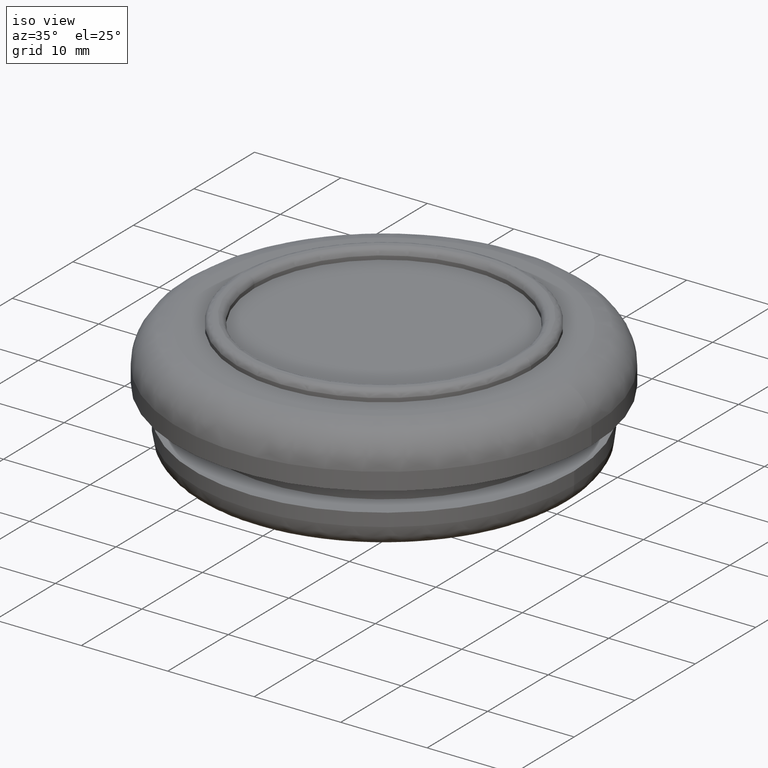
[diagram: clean part render]
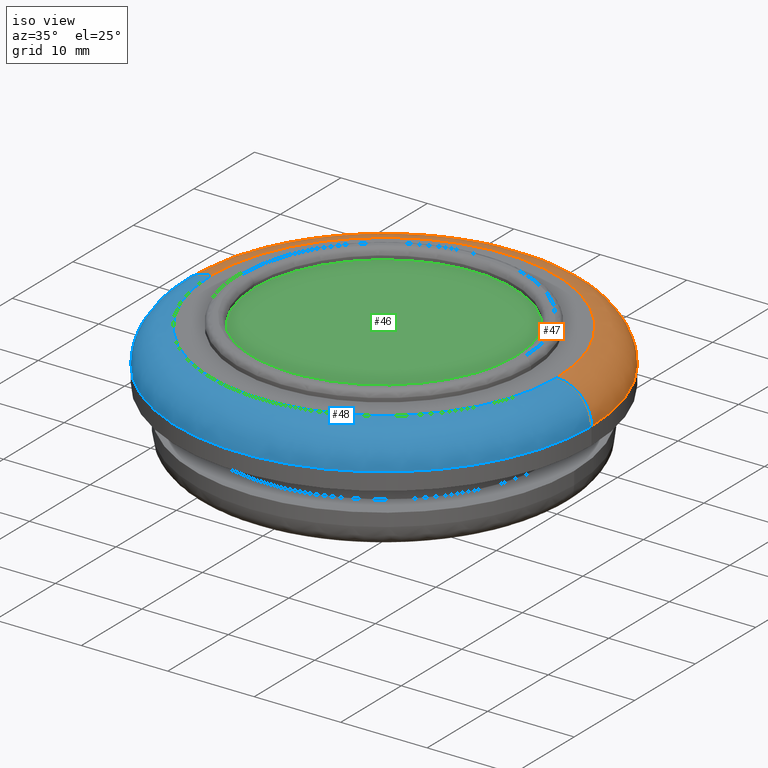
[diagram: same view with three faces highlighted in distinct colors, each labeled with its STEP entity id]
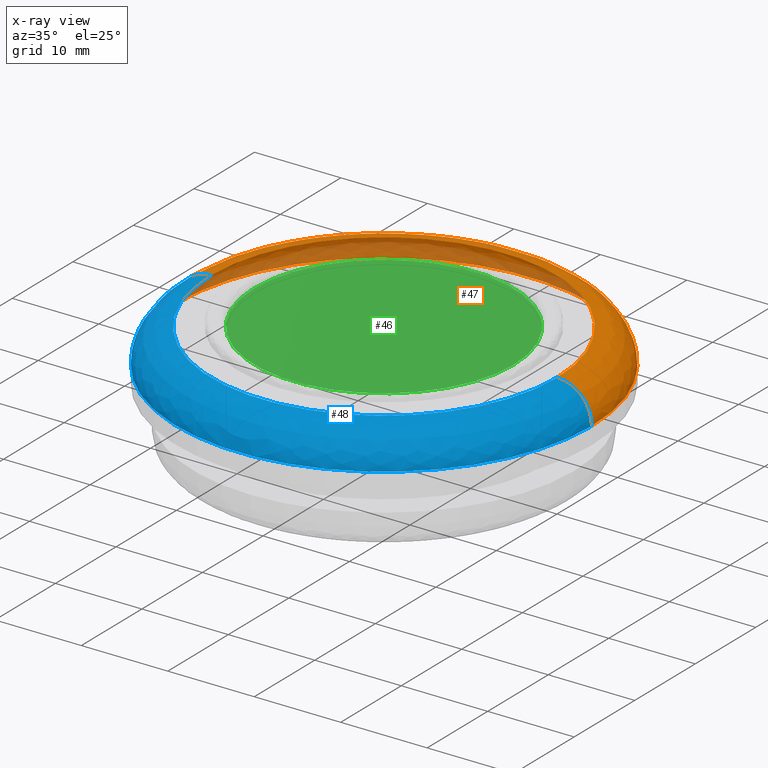
[diagram: x-ray of the same camera — body ghosted, the three highlighted faces saturated]
A machine part, iso view with three faces highlighted in distinct colors.
The next image is the same camera in x-ray (body ghosted, the three faces saturated) — at least one of them is partly hidden behind the body in this view.
Their STEP definitions:

[orange] entity #47 — the highlighted face is a freeform B-spline surface patch.
#47=ADVANCED_FACE('',(#143),#142,.T.);
#142=( BOUNDED_SURFACE() B_SPLINE_SURFACE( 2,2,((#382,#383,#384,#385,#386),(#387,#388,#389,#390,#391),(#392,#393,#394,#395,#396),(#397,#398,#399,#400,#401),(#402,#403,#404,#405,#406)), .UNSPECIFIED.,.F.,.F.,.F.) B_SPLINE_SURFACE_WITH_KNOTS((3,2,3),(3,2,3),(0.00000000000E+000,5.00000000000E-001,1.00000000000E+000),(0.00000000000E+000,5.00000000000E-001,1.00000000000E+000), .UNSPECIFIED. ) GEOMETRIC_REPRESENTATION_ITEM() RATIONAL_B_SPLINE_SURFACE(((1.00000000000E+000,7.07106781186E-001,1.00000000000E+000,7.07106781186E-001,1.00000000000E+000),(7.07106781187E-001,5.00000000000E-001,7.07106781187E-001,5.00000000000E-001,7.07106781187E-001),(1.00000000000E+000,7.07106781186E-001,1.00000000000E+000,7.07106781186E-001,1.00000000000E+000),(7.07106781187E-001,5.00000000000E-001,7.07106781187E-001,5.00000000000E-001,7.07106781187E-001),(1.00000000000E+000,7.07106781186E-001,1.00000000000E+000,7.07106781186E-001,1.00000000000E+000))) REPRESENTATION_ITEM('') SURFACE() );
#143=FACE_OUTER_BOUND('',#407,.T.);
#382=CARTESIAN_POINT('',(-1.60000000000E+001,1.39899031251E-013,9.20000000000E+000));
#383=CARTESIAN_POINT('',(-1.60000000000E+001,3.10859833161E-014,1.32000000000E+001));
#384=CARTESIAN_POINT('',(-2.00000000000E+001,4.71745896124E-014,1.32000000000E+001));
#385=CARTESIAN_POINT('',(-2.40000000000E+001,6.32631959087E-014,1.32000000000E+001));
#386=CARTESIAN_POINT('',(-2.40000000000E+001,1.72076243844E-013,9.20000000000E+000));
#387=CARTESIAN_POINT('',(-1.60000000000E+001,1.60000000000E+001,9.20000000000E+000));
#388=CARTESIAN_POINT('',(-1.60000000000E+001,1.60000000000E+001,1.32000000000E+001));
#389=CARTESIAN_POINT('',(-2.00000000000E+001,2.00000000000E+001,1.32000000000E+001));
#390=CARTESIAN_POINT('',(-2.40000000000E+001,2.40000000000E+001,1.32000000000E+001));
#391=CARTESIAN_POINT('',(-2.40000000000E+001,2.40000000000E+001,9.20000000000E+000));
#392=CARTESIAN_POINT('',(6.33747077458E-014,1.60000000000E+001,9.20000000000E+000));
#393=CARTESIAN_POINT('',(6.33747077458E-014,1.60000000000E+001,1.32000000000E+001));
#394=CARTESIAN_POINT('',(7.92183846823E-014,2.00000000000E+001,1.32000000000E+001));
#395=CARTESIAN_POINT('',(9.50620616187E-014,2.40000000000E+001,1.32000000000E+001));
#396=CARTESIAN_POINT('',(9.50620616187E-014,2.40000000000E+001,9.20000000000E+000));
#397=CARTESIAN_POINT('',(1.60000000000E+001,1.60000000000E+001,9.20000000000E+000));
#398=CARTESIAN_POINT('',(1.60000000000E+001,1.60000000000E+001,1.32000000000E+001));
#399=CARTESIAN_POINT('',(2.00000000000E+001,2.00000000000E+001,1.32000000000E+001));
#400=CARTESIAN_POINT('',(2.40000000000E+001,2.40000000000E+001,1.32000000000E+001));
#401=CARTESIAN_POINT('',(2.40000000000E+001,2.40000000000E+001,9.20000000000E+000));
#402=CARTESIAN_POINT('',(1.60000000000E+001,1.31496157597E-014,9.20000000000E+000));
#403=CARTESIAN_POINT('',(1.60000000000E+001,-9.56634321755E-014,1.32000000000E+001));
#404=CARTESIAN_POINT('',(2.00000000000E+001,-1.11262179752E-013,1.32000000000E+001));
#405=CARTESIAN_POINT('',(2.40000000000E+001,-1.26860927329E-013,1.32000000000E+001));
#406=CARTESIAN_POINT('',(2.40000000000E+001,-1.80478793936E-014,9.20000000000E+000));
#407=EDGE_LOOP('',(#674,#675,#676,#677));
#674=ORIENTED_EDGE('',*,*,#778,.F.);
#675=ORIENTED_EDGE('',*,*,#779,.F.);
#676=ORIENTED_EDGE('',*,*,#755,.T.);
#677=ORIENTED_EDGE('',*,*,#780,.T.);
#755=EDGE_CURVE('',#807,#806,#814,.T.);
#778=EDGE_CURVE('',#974,#975,#976,.T.);
#779=EDGE_CURVE('',#807,#974,#982,.T.);
#780=EDGE_CURVE('',#806,#975,#988,.T.);
#806=VERTEX_POINT('',#1150);
#807=VERTEX_POINT('',#1151);
#814=CIRCLE('',#1159,2.00000000000E+001);
#974=VERTEX_POINT('',#1270);
#975=VERTEX_POINT('',#1271);
#976=CIRCLE('',#1275,2.40000000000E+001);
#982=(BOUNDED_CURVE() B_SPLINE_CURVE(2,(#1276,#1277,#1278),.UNSPECIFIED.,.F.,.F.) B_SPLINE_CURVE_WITH_KNOTS((3,3),(5.00000000000E-001,1.00000000000E+000),.UNSPECIFIED.) CURVE() GEOMETRIC_REPRESENTATION_ITEM() RATIONAL_B_SPLINE_CURVE((1.00000000000E+000,7.07106781186E-001,1.00000000000E+000)) REPRESENTATION_ITEM('') );
#988=(BOUNDED_CURVE() B_SPLINE_CURVE(3,(#1279,#1280,#1281,#1282,#1283),.UNSPECIFIED.,.F.,.F.) B_SPLINE_CURVE_WITH_KNOTS((4,1,4),(4.99999901226E-001,7.49999943160E-001,1.00000000000E+000),.UNSPECIFIED.) CURVE() GEOMETRIC_REPRESENTATION_ITEM() RATIONAL_B_SPLINE_CURVE((1.00000000000E+000,1.00000000000E+000,1.00000000000E+000,1.00000000000E+000,1.00000000000E+000)) REPRESENTATION_ITEM('') );
#1150=CARTESIAN_POINT('',(2.00000000000E+001,0.00000000000E+000,1.32000000000E+001));
#1151=CARTESIAN_POINT('',(-2.00000000000E+001,-3.63345060057E-015,1.32000000000E+001));
#1156=CARTESIAN_POINT('',(0.00000000000E+000,0.00000000000E+000,1.32000000000E+001));
#1157=DIRECTION('',(0.00000000000E+000,0.00000000000E+000,-1.00000000000E+000));
#1158=DIRECTION('',(-1.00000000000E+000,-5.92118946465E-017,-0.00000000000E+000));
#1159=AXIS2_PLACEMENT_3D('',#1156,#1157,#1158);
#1270=CARTESIAN_POINT('',(-2.40000000000E+001,-1.75481735624E-015,9.20000000000E+000));
#1271=CARTESIAN_POINT('',(2.40000000000E+001,-3.55271367880E-015,9.20000000000E+000));
#1272=CARTESIAN_POINT('',(0.00000000000E+000,0.00000000000E+000,9.20000000000E+000));
#1273=DIRECTION('',(0.00000000000E+000,0.00000000000E+000,-1.00000000000E+000));
#1274=DIRECTION('',(-1.00000000000E+000,4.93432455388E-017,-0.00000000000E+000));
#1275=AXIS2_PLACEMENT_3D('',#1272,#1273,#1274);
#1276=CARTESIAN_POINT('',(-2.00000000000E+001,4.71745896124E-014,1.32000000000E+001));
#1277=CARTESIAN_POINT('',(-2.40000000000E+001,6.32631959087E-014,1.32000000000E+001));
#1278=CARTESIAN_POINT('',(-2.40000000000E+001,1.72076243844E-013,9.20000000000E+000));
#1279=CARTESIAN_POINT('',(1.99999988825E+001,-1.14871070894E-013,1.32000000000E+001));
#1280=CARTESIAN_POINT('',(2.10324485419E+001,-1.19571689219E-013,1.32073771632E+001));
#1281=CARTESIAN_POINT('',(2.31369407028E+001,-1.05107799276E-013,1.23369416436E+001));
#1282=CARTESIAN_POINT('',(2.40073768774E+001,-5.17535235272E-014,1.02324497227E+001));
#1283=CARTESIAN_POINT('',(2.40000000000E+001,-2.36847578587E-014,9.20000000000E+000));

[blue] entity #48 — the highlighted face is a freeform B-spline surface patch.
#48=ADVANCED_FACE('',(#153),#152,.T.);
#152=( BOUNDED_SURFACE() B_SPLINE_SURFACE( 2,2,((#408,#409,#410,#411,#412),(#413,#414,#415,#416,#417),(#418,#419,#420,#421,#422),(#423,#424,#425,#426,#427),(#428,#429,#430,#431,#432)), .UNSPECIFIED.,.F.,.F.,.F.) B_SPLINE_SURFACE_WITH_KNOTS((3,2,3),(3,2,3),(0.00000000000E+000,5.00000000000E-001,1.00000000000E+000),(0.00000000000E+000,5.00000000000E-001,1.00000000000E+000), .UNSPECIFIED. ) GEOMETRIC_REPRESENTATION_ITEM() RATIONAL_B_SPLINE_SURFACE(((1.00000000000E+000,7.07106781186E-001,1.00000000000E+000,7.07106781186E-001,1.00000000000E+000),(7.07106781187E-001,5.00000000000E-001,7.07106781187E-001,5.00000000000E-001,7.07106781187E-001),(1.00000000000E+000,7.07106781186E-001,1.00000000000E+000,7.07106781186E-001,1.00000000000E+000),(7.07106781187E-001,5.00000000000E-001,7.07106781187E-001,5.00000000000E-001,7.07106781187E-001),(1.00000000000E+000,7.07106781186E-001,1.00000000000E+000,7.07106781186E-001,1.00000000000E+000))) REPRESENTATION_ITEM('') SURFACE() );
#153=FACE_OUTER_BOUND('',#433,.T.);
#408=CARTESIAN_POINT('',(1.60000000000E+001,1.31496157597E-014,9.20000000000E+000));
#409=CARTESIAN_POINT('',(1.60000000000E+001,-9.56634321755E-014,1.32000000000E+001));
#410=CARTESIAN_POINT('',(2.00000000000E+001,-1.11262179752E-013,1.32000000000E+001));
#411=CARTESIAN_POINT('',(2.40000000000E+001,-1.26860927329E-013,1.32000000000E+001));
#412=CARTESIAN_POINT('',(2.40000000000E+001,-1.80478793936E-014,9.20000000000E+000));
#413=CARTESIAN_POINT('',(1.60000000000E+001,-1.60000000000E+001,9.20000000000E+000));
#414=CARTESIAN_POINT('',(1.60000000000E+001,-1.60000000000E+001,1.32000000000E+001));
#415=CARTESIAN_POINT('',(2.00000000000E+001,-2.00000000000E+001,1.32000000000E+001));
#416=CARTESIAN_POINT('',(2.40000000000E+001,-2.40000000000E+001,1.32000000000E+001));
#417=CARTESIAN_POINT('',(2.40000000000E+001,-2.40000000000E+001,9.20000000000E+000));
#418=CARTESIAN_POINT('',(-6.14152728672E-014,-1.60000000000E+001,9.20000000000E+000));
#419=CARTESIAN_POINT('',(-6.14152728672E-014,-1.60000000000E+001,1.32000000000E+001));
#420=CARTESIAN_POINT('',(-7.67690910840E-014,-2.00000000000E+001,1.32000000000E+001));
#421=CARTESIAN_POINT('',(-9.21229093008E-014,-2.40000000000E+001,1.32000000000E+001));
#422=CARTESIAN_POINT('',(-9.21229093008E-014,-2.40000000000E+001,9.20000000000E+000));
#423=CARTESIAN_POINT('',(-1.60000000000E+001,-1.60000000000E+001,9.20000000000E+000));
#424=CARTESIAN_POINT('',(-1.60000000000E+001,-1.60000000000E+001,1.32000000000E+001));
#425=CARTESIAN_POINT('',(-2.00000000000E+001,-2.00000000000E+001,1.32000000000E+001));
#426=CARTESIAN_POINT('',(-2.40000000000E+001,-2.40000000000E+001,1.32000000000E+001));
#427=CARTESIAN_POINT('',(-2.40000000000E+001,-2.40000000000E+001,9.20000000000E+000));
#428=CARTESIAN_POINT('',(-1.60000000000E+001,1.35980161494E-013,9.20000000000E+000));
#429=CARTESIAN_POINT('',(-1.60000000000E+001,2.71671135589E-014,1.32000000000E+001));
#430=CARTESIAN_POINT('',(-2.00000000000E+001,4.22760024158E-014,1.32000000000E+001));
#431=CARTESIAN_POINT('',(-2.40000000000E+001,5.73848912728E-014,1.32000000000E+001));
#432=CARTESIAN_POINT('',(-2.40000000000E+001,1.66197939208E-013,9.20000000000E+000));
#433=EDGE_LOOP('',(#678,#679,#680,#681));
#678=ORIENTED_EDGE('',*,*,#754,.T.);
#679=ORIENTED_EDGE('',*,*,#779,.T.);
#680=ORIENTED_EDGE('',*,*,#781,.F.);
#681=ORIENTED_EDGE('',*,*,#780,.F.);
#754=EDGE_CURVE('',#806,#807,#808,.T.);
#779=EDGE_CURVE('',#807,#974,#982,.T.);
#780=EDGE_CURVE('',#806,#975,#988,.T.);
#781=EDGE_CURVE('',#975,#974,#994,.T.);
#806=VERTEX_POINT('',#1150);
#807=VERTEX_POINT('',#1151);
#808=CIRCLE('',#1155,2.00000000000E+001);
#974=VERTEX_POINT('',#1270);
#975=VERTEX_POINT('',#1271);
#982=(BOUNDED_CURVE() B_SPLINE_CURVE(2,(#1276,#1277,#1278),.UNSPECIFIED.,.F.,.F.) B_SPLINE_CURVE_WITH_KNOTS((3,3),(5.00000000000E-001,1.00000000000E+000),.UNSPECIFIED.) CURVE() GEOMETRIC_REPRESENTATION_ITEM() RATIONAL_B_SPLINE_CURVE((1.00000000000E+000,7.07106781186E-001,1.00000000000E+000)) REPRESENTATION_ITEM('') );
#988=(BOUNDED_CURVE() B_SPLINE_CURVE(3,(#1279,#1280,#1281,#1282,#1283),.UNSPECIFIED.,.F.,.F.) B_SPLINE_CURVE_WITH_KNOTS((4,1,4),(4.99999901226E-001,7.49999943160E-001,1.00000000000E+000),.UNSPECIFIED.) CURVE() GEOMETRIC_REPRESENTATION_ITEM() RATIONAL_B_SPLINE_CURVE((1.00000000000E+000,1.00000000000E+000,1.00000000000E+000,1.00000000000E+000,1.00000000000E+000)) REPRESENTATION_ITEM('') );
#994=CIRCLE('',#1287,2.40000000000E+001);
#1150=CARTESIAN_POINT('',(2.00000000000E+001,0.00000000000E+000,1.32000000000E+001));
#1151=CARTESIAN_POINT('',(-2.00000000000E+001,-3.63345060057E-015,1.32000000000E+001));
#1152=CARTESIAN_POINT('',(0.00000000000E+000,0.00000000000E+000,1.32000000000E+001));
#1153=DIRECTION('',(0.00000000000E+000,0.00000000000E+000,-1.00000000000E+000));
#1154=DIRECTION('',(-1.00000000000E+000,-5.92118946465E-017,-0.00000000000E+000));
#1155=AXIS2_PLACEMENT_3D('',#1152,#1153,#1154);
#1270=CARTESIAN_POINT('',(-2.40000000000E+001,-1.75481735624E-015,9.20000000000E+000));
#1271=CARTESIAN_POINT('',(2.40000000000E+001,-3.55271367880E-015,9.20000000000E+000));
#1276=CARTESIAN_POINT('',(-2.00000000000E+001,4.71745896124E-014,1.32000000000E+001));
#1277=CARTESIAN_POINT('',(-2.40000000000E+001,6.32631959087E-014,1.32000000000E+001));
#1278=CARTESIAN_POINT('',(-2.40000000000E+001,1.72076243844E-013,9.20000000000E+000));
#1279=CARTESIAN_POINT('',(1.99999988825E+001,-1.14871070894E-013,1.32000000000E+001));
#1280=CARTESIAN_POINT('',(2.10324485419E+001,-1.19571689219E-013,1.32073771632E+001));
#1281=CARTESIAN_POINT('',(2.31369407028E+001,-1.05107799276E-013,1.23369416436E+001));
#1282=CARTESIAN_POINT('',(2.40073768774E+001,-5.17535235272E-014,1.02324497227E+001));
#1283=CARTESIAN_POINT('',(2.40000000000E+001,-2.36847578587E-014,9.20000000000E+000));
#1284=CARTESIAN_POINT('',(0.00000000000E+000,0.00000000000E+000,9.20000000000E+000));
#1285=DIRECTION('',(0.00000000000E+000,0.00000000000E+000,-1.00000000000E+000));
#1286=DIRECTION('',(-1.00000000000E+000,4.93432455388E-017,-0.00000000000E+000));
#1287=AXIS2_PLACEMENT_3D('',#1284,#1285,#1286);

[green] entity #46 — the highlighted planar face has unit normal (0, 0, -1).
#46=ADVANCED_FACE('',(#133),#132,.F.);
#132=PLANE('',#380);
#133=FACE_OUTER_BOUND('',#381,.T.);
#377=CARTESIAN_POINT('',(3.45000000000E+001,-3.11769145362E+001,1.32000000000E+001));
#378=DIRECTION('',(0.00000000000E+000,0.00000000000E+000,-1.00000000000E+000));
#379=DIRECTION('',(-1.00000000000E+000,0.00000000000E+000,0.00000000000E+000));
#380=AXIS2_PLACEMENT_3D('',#377,#378,#379);
#381=EDGE_LOOP('',(#672,#673));
#672=ORIENTED_EDGE('',*,*,#776,.F.);
#673=ORIENTED_EDGE('',*,*,#777,.F.);
#776=EDGE_CURVE('',#960,#961,#962,.T.);
#777=EDGE_CURVE('',#961,#960,#968,.T.);
#960=VERTEX_POINT('',#1260);
#961=VERTEX_POINT('',#1261);
#962=CIRCLE('',#1265,1.50000000000E+001);
#968=CIRCLE('',#1269,1.50000000000E+001);
#1260=CARTESIAN_POINT('',(1.50000000000E+001,0.00000000000E+000,1.32000000000E+001));
#1261=CARTESIAN_POINT('',(-1.50000000000E+001,-3.61326637013E-015,1.32000000000E+001));
#1262=CARTESIAN_POINT('',(0.00000000000E+000,0.00000000000E+000,1.32000000000E+001));
#1263=DIRECTION('',(0.00000000000E+000,0.00000000000E+000,-1.00000000000E+000));
#1264=DIRECTION('',(-1.00000000000E+000,-1.18423789293E-016,-0.00000000000E+000));
#1265=AXIS2_PLACEMENT_3D('',#1262,#1263,#1264);
#1266=CARTESIAN_POINT('',(0.00000000000E+000,0.00000000000E+000,1.32000000000E+001));
#1267=DIRECTION('',(0.00000000000E+000,0.00000000000E+000,-1.00000000000E+000));
#1268=DIRECTION('',(-1.00000000000E+000,-1.18423789293E-016,-0.00000000000E+000));
#1269=AXIS2_PLACEMENT_3D('',#1266,#1267,#1268);